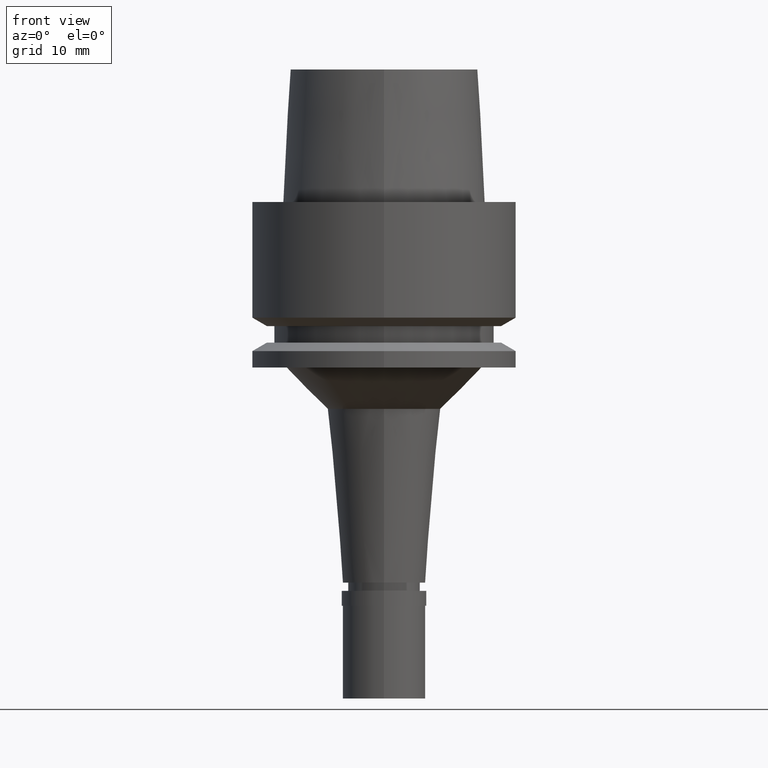
[diagram: clean part render]
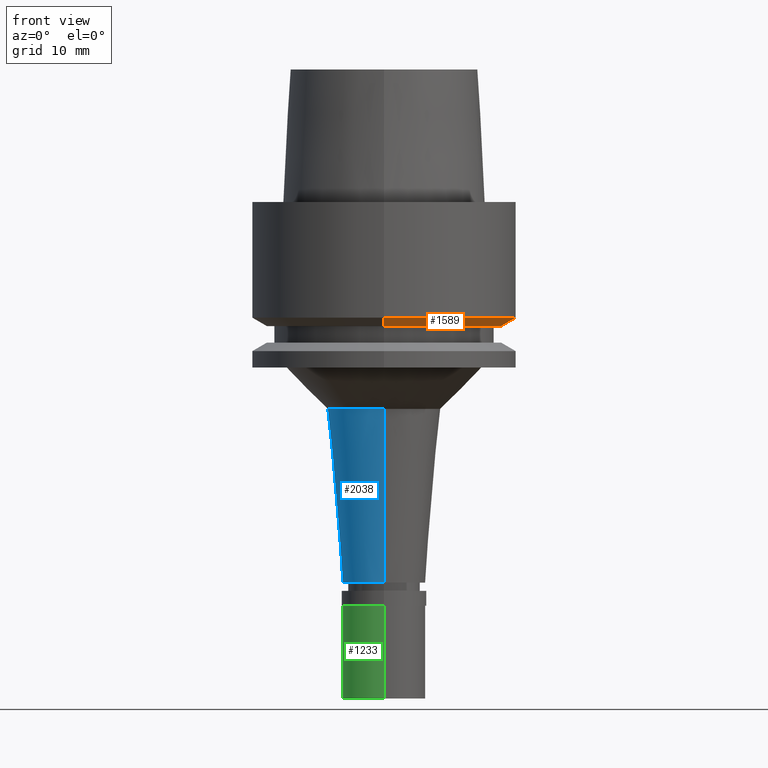
[diagram: same view with three faces highlighted in distinct colors, each labeled with its STEP entity id]
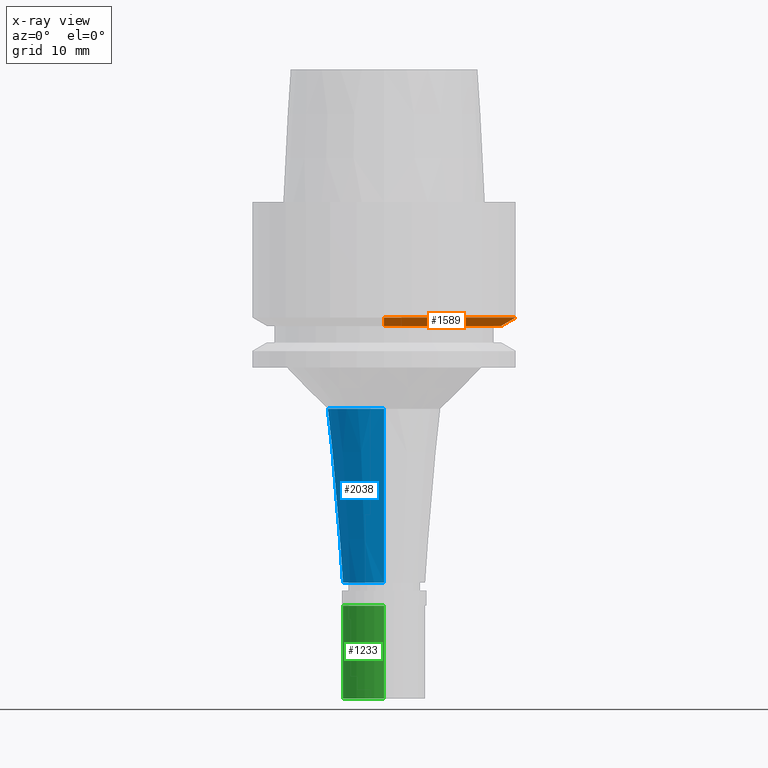
[diagram: x-ray of the same camera — body ghosted, the three highlighted faces saturated]
A machine part, front view with three faces highlighted in distinct colors.
The next image is the same camera in x-ray (body ghosted, the three faces saturated) — at least one of them is partly hidden behind the body in this view.
Their STEP definitions:

[orange] entity #1589 — the highlighted conical surface has half-angle 60 deg.
#23 = AXIS2_PLACEMENT_3D ( 'NONE', #2186, #1377, #78 ) ;
#27 = CIRCLE ( 'NONE', #1471, 16.00000000000000000 ) ;
#78 = DIRECTION ( 'NONE',  ( 0.0000000000000000000, 1.000000000000000000, 0.0000000000000000000 ) ) ;
#104 = FACE_OUTER_BOUND ( 'NONE', #1565, .T. ) ;
#149 = EDGE_CURVE ( 'NONE', #2652, #2272, #2488, .T. ) ;
#190 = CONICAL_SURFACE ( 'NONE', #23, 15.11602540378000015, 1.047197551196400456 ) ;
#322 = AXIS2_PLACEMENT_3D ( 'NONE', #1798, #2613, #1335 ) ;
#426 = CARTESIAN_POINT ( 'NONE',  ( 0.0000000000000000000, -16.00000000000000000, -13.97927405783999966 ) ) ;
#451 = CARTESIAN_POINT ( 'NONE',  ( 0.0000000000000000000, 14.23205080756999941, -15.00000000000000000 ) ) ;
#457 = VERTEX_POINT ( 'NONE', #451 ) ;
#508 = CARTESIAN_POINT ( 'NONE',  ( 0.0000000000000000000, 0.0000000000000000000, -13.97927405783999966 ) ) ;
#511 = ORIENTED_EDGE ( 'NONE', *, *, #2663, .T. ) ;
#561 = VECTOR ( 'NONE', #1454, 1000.000000000000000 ) ;
#862 = VECTOR ( 'NONE', #1867, 1000.000000000000000 ) ;
#972 = CARTESIAN_POINT ( 'NONE',  ( 0.0000000000000000000, -16.00000000000000000, -13.97927405783999966 ) ) ;
#1335 = DIRECTION ( 'NONE',  ( 0.0000000000000000000, -1.000000000000000000, 0.0000000000000000000 ) ) ;
#1349 = DIRECTION ( 'NONE',  ( 0.0000000000000000000, 0.0000000000000000000, 1.000000000000000000 ) ) ;
#1375 = ORIENTED_EDGE ( 'NONE', *, *, #149, .T. ) ;
#1377 = DIRECTION ( 'NONE',  ( 0.0000000000000000000, 0.0000000000000000000, 1.000000000000000000 ) ) ;
#1454 = DIRECTION ( 'NONE',  ( 0.0000000000000000000, 0.8660254037847886499, -0.4999999999993937627 ) ) ;
#1471 = AXIS2_PLACEMENT_3D ( 'NONE', #508, #1349, #1573 ) ;
#1565 = EDGE_LOOP ( 'NONE', ( #2553, #1375, #511, #2169 ) ) ;
#1573 = DIRECTION ( 'NONE',  ( 0.0000000000000000000, -1.000000000000000000, 0.0000000000000000000 ) ) ;
#1589 = ADVANCED_FACE ( 'NONE', ( #104 ), #190, .T. ) ;
#1672 = LINE ( 'NONE', #1831, #862 ) ;
#1798 = CARTESIAN_POINT ( 'NONE',  ( 0.0000000000000000000, 0.0000000000000000000, -15.00000000000000000 ) ) ;
#1831 = CARTESIAN_POINT ( 'NONE',  ( 0.0000000000000000000, 16.00000000000000000, -13.97927405783999966 ) ) ;
#1867 = DIRECTION ( 'NONE',  ( 0.0000000000000000000, -0.8660254037847886499, -0.4999999999993937627 ) ) ;
#1953 = CIRCLE ( 'NONE', #322, 14.23205080756999941 ) ;
#2093 = CARTESIAN_POINT ( 'NONE',  ( 0.0000000000000000000, -14.23205080756999941, -15.00000000000000000 ) ) ;
#2169 = ORIENTED_EDGE ( 'NONE', *, *, #2180, .F. ) ;
#2180 = EDGE_CURVE ( 'NONE', #2291, #457, #1672, .T. ) ;
#2186 = CARTESIAN_POINT ( 'NONE',  ( 0.0000000000000000000, 0.0000000000000000000, -14.48963702891999894 ) ) ;
#2272 = VERTEX_POINT ( 'NONE', #2093 ) ;
#2291 = VERTEX_POINT ( 'NONE', #2560 ) ;
#2488 = LINE ( 'NONE', #426, #561 ) ;
#2553 = ORIENTED_EDGE ( 'NONE', *, *, #2624, .F. ) ;
#2560 = CARTESIAN_POINT ( 'NONE',  ( 0.0000000000000000000, 16.00000000000000000, -13.97927405783999966 ) ) ;
#2613 = DIRECTION ( 'NONE',  ( 0.0000000000000000000, 0.0000000000000000000, 1.000000000000000000 ) ) ;
#2624 = EDGE_CURVE ( 'NONE', #2652, #2291, #27, .T. ) ;
#2652 = VERTEX_POINT ( 'NONE', #972 ) ;
#2663 = EDGE_CURVE ( 'NONE', #2272, #457, #1953, .T. ) ;

[blue] entity #2038 — the highlighted conical surface has half-angle 5 deg.
#10 = ORIENTED_EDGE ( 'NONE', *, *, #1971, .T. ) ;
#95 = CARTESIAN_POINT ( 'NONE',  ( 0.0000000000000000000, 0.0000000000000000000, -35.50000000000000000 ) ) ;
#126 = FACE_OUTER_BOUND ( 'NONE', #1603, .T. ) ;
#136 = CARTESIAN_POINT ( 'NONE',  ( 0.0000000000000000000, -6.837261934044000178, -25.00000000000000000 ) ) ;
#320 = CARTESIAN_POINT ( 'NONE',  ( 0.0000000000000000000, 6.837261934044000178, -25.00000000000000000 ) ) ;
#343 = EDGE_CURVE ( 'NONE', #1796, #1977, #652, .T. ) ;
#652 = CIRCLE ( 'NONE', #1046, 6.837261934044000178 ) ;
#698 = LINE ( 'NONE', #1159, #1996 ) ;
#815 = AXIS2_PLACEMENT_3D ( 'NONE', #1478, #2200, #1606 ) ;
#816 = ORIENTED_EDGE ( 'NONE', *, *, #2597, .F. ) ;
#925 = DIRECTION ( 'NONE',  ( 0.0000000000000000000, -1.000000000000000000, 0.0000000000000000000 ) ) ;
#940 = CARTESIAN_POINT ( 'NONE',  ( 0.0000000000000000000, -5.000000000000000000, -46.00000000000000000 ) ) ;
#953 = VERTEX_POINT ( 'NONE', #1690 ) ;
#984 = DIRECTION ( 'NONE',  ( 0.0000000000000000000, 0.08715574274765398866, -0.9961946980917458783 ) ) ;
#1046 = AXIS2_PLACEMENT_3D ( 'NONE', #1053, #2132, #925 ) ;
#1053 = CARTESIAN_POINT ( 'NONE',  ( 0.0000000000000000000, 0.0000000000000000000, -25.00000000000000000 ) ) ;
#1151 = DIRECTION ( 'NONE',  ( 0.0000000000000000000, 0.0000000000000000000, 1.000000000000000000 ) ) ;
#1159 = CARTESIAN_POINT ( 'NONE',  ( 0.0000000000000000000, -6.837261934044000178, -25.00000000000000000 ) ) ;
#1478 = CARTESIAN_POINT ( 'NONE',  ( 0.0000000000000000000, 0.0000000000000000000, -46.00000000000000000 ) ) ;
#1563 = ORIENTED_EDGE ( 'NONE', *, *, #343, .T. ) ;
#1568 = VERTEX_POINT ( 'NONE', #940 ) ;
#1598 = CONICAL_SURFACE ( 'NONE', #1994, 5.918630967021999645, 0.08726646259969973729 ) ;
#1603 = EDGE_LOOP ( 'NONE', ( #10, #816, #1563, #1814 ) ) ;
#1606 = DIRECTION ( 'NONE',  ( 0.0000000000000000000, 1.000000000000000000, 0.0000000000000000000 ) ) ;
#1690 = CARTESIAN_POINT ( 'NONE',  ( 0.0000000000000000000, 5.000000000000000000, -46.00000000000000000 ) ) ;
#1771 = CARTESIAN_POINT ( 'NONE',  ( 0.0000000000000000000, 6.837261934044000178, -25.00000000000000000 ) ) ;
#1796 = VERTEX_POINT ( 'NONE', #136 ) ;
#1814 = ORIENTED_EDGE ( 'NONE', *, *, #2151, .T. ) ;
#1971 = EDGE_CURVE ( 'NONE', #953, #1568, #2418, .T. ) ;
#1977 = VERTEX_POINT ( 'NONE', #1771 ) ;
#1994 = AXIS2_PLACEMENT_3D ( 'NONE', #95, #1151, #2431 ) ;
#1996 = VECTOR ( 'NONE', #984, 1000.000000000000000 ) ;
#2038 = ADVANCED_FACE ( 'NONE', ( #126 ), #1598, .T. ) ;
#2132 = DIRECTION ( 'NONE',  ( 0.0000000000000000000, 0.0000000000000000000, -1.000000000000000000 ) ) ;
#2151 = EDGE_CURVE ( 'NONE', #1977, #953, #2606, .T. ) ;
#2200 = DIRECTION ( 'NONE',  ( 0.0000000000000000000, 0.0000000000000000000, 1.000000000000000000 ) ) ;
#2294 = VECTOR ( 'NONE', #2617, 1000.000000000000000 ) ;
#2418 = CIRCLE ( 'NONE', #815, 5.000000000000000000 ) ;
#2431 = DIRECTION ( 'NONE',  ( 0.0000000000000000000, 1.000000000000000000, 0.0000000000000000000 ) ) ;
#2597 = EDGE_CURVE ( 'NONE', #1796, #1568, #698, .T. ) ;
#2606 = LINE ( 'NONE', #320, #2294 ) ;
#2617 = DIRECTION ( 'NONE',  ( 0.0000000000000000000, -0.08715574274765398866, -0.9961946980917458783 ) ) ;

[green] entity #1233 — the highlighted cylindrical surface (partial cylindrical patch) has radius 5 mm, axis along (0, 0, 1).
#184 = DIRECTION ( 'NONE',  ( 0.0000000000000000000, 0.0000000000000000000, 1.000000000000000000 ) ) ;
#187 = AXIS2_PLACEMENT_3D ( 'NONE', #1681, #1670, #408 ) ;
#211 = VERTEX_POINT ( 'NONE', #558 ) ;
#289 = EDGE_CURVE ( 'NONE', #1326, #211, #1815, .T. ) ;
#408 = DIRECTION ( 'NONE',  ( 0.0000000000000000000, 1.000000000000000000, 0.0000000000000000000 ) ) ;
#558 = CARTESIAN_POINT ( 'NONE',  ( 0.0000000000000000000, -5.000000000000000000, -13.00000000000000000 ) ) ;
#596 = CYLINDRICAL_SURFACE ( 'NONE', #1591, 5.000000000000000000 ) ;
#736 = EDGE_CURVE ( 'NONE', #1535, #1995, #1761, .T. ) ;
#772 = DIRECTION ( 'NONE',  ( 0.0000000000000000000, 0.0000000000000000000, -1.000000000000000000 ) ) ;
#835 = VECTOR ( 'NONE', #772, 1000.000000000000000 ) ;
#919 = DIRECTION ( 'NONE',  ( 0.0000000000000000000, 1.000000000000000000, 0.0000000000000000000 ) ) ;
#948 = CARTESIAN_POINT ( 'NONE',  ( 0.0000000000000000000, 5.000000000000000000, -1.800000000000000044 ) ) ;
#1185 = EDGE_CURVE ( 'NONE', #1995, #211, #1371, .T. ) ;
#1223 = VECTOR ( 'NONE', #2381, 1000.000000000000000 ) ;
#1228 = CARTESIAN_POINT ( 'NONE',  ( 0.0000000000000000000, 0.0000000000000000000, -13.65000000000000036 ) ) ;
#1233 = ADVANCED_FACE ( 'NONE', ( #1482 ), #596, .T. ) ;
#1326 = VERTEX_POINT ( 'NONE', #1696 ) ;
#1371 = CIRCLE ( 'NONE', #187, 5.000000000000000000 ) ;
#1374 = CIRCLE ( 'NONE', #1642, 5.000000000000000000 ) ;
#1438 = EDGE_LOOP ( 'NONE', ( #1496, #2595, #2416, #1959 ) ) ;
#1482 = FACE_OUTER_BOUND ( 'NONE', #1438, .T. ) ;
#1496 = ORIENTED_EDGE ( 'NONE', *, *, #1185, .T. ) ;
#1535 = VERTEX_POINT ( 'NONE', #2175 ) ;
#1591 = AXIS2_PLACEMENT_3D ( 'NONE', #1228, #184, #919 ) ;
#1642 = AXIS2_PLACEMENT_3D ( 'NONE', #2632, #1965, #1816 ) ;
#1670 = DIRECTION ( 'NONE',  ( 0.0000000000000000000, 0.0000000000000000000, 1.000000000000000000 ) ) ;
#1681 = CARTESIAN_POINT ( 'NONE',  ( 0.0000000000000000000, 0.0000000000000000000, -13.00000000000000000 ) ) ;
#1696 = CARTESIAN_POINT ( 'NONE',  ( 0.0000000000000000000, -5.000000000000000000, -1.800000000000000044 ) ) ;
#1761 = LINE ( 'NONE', #948, #1223 ) ;
#1815 = LINE ( 'NONE', #2005, #835 ) ;
#1816 = DIRECTION ( 'NONE',  ( 0.0000000000000000000, -1.000000000000000000, 0.0000000000000000000 ) ) ;
#1959 = ORIENTED_EDGE ( 'NONE', *, *, #736, .T. ) ;
#1965 = DIRECTION ( 'NONE',  ( 0.0000000000000000000, 0.0000000000000000000, -1.000000000000000000 ) ) ;
#1995 = VERTEX_POINT ( 'NONE', #2590 ) ;
#2005 = CARTESIAN_POINT ( 'NONE',  ( 0.0000000000000000000, -5.000000000000000000, -1.800000000000000044 ) ) ;
#2073 = EDGE_CURVE ( 'NONE', #1326, #1535, #1374, .T. ) ;
#2175 = CARTESIAN_POINT ( 'NONE',  ( 0.0000000000000000000, 5.000000000000000000, -1.800000000000000044 ) ) ;
#2381 = DIRECTION ( 'NONE',  ( 0.0000000000000000000, 0.0000000000000000000, -1.000000000000000000 ) ) ;
#2416 = ORIENTED_EDGE ( 'NONE', *, *, #2073, .T. ) ;
#2590 = CARTESIAN_POINT ( 'NONE',  ( 0.0000000000000000000, 5.000000000000000000, -13.00000000000000000 ) ) ;
#2595 = ORIENTED_EDGE ( 'NONE', *, *, #289, .F. ) ;
#2632 = CARTESIAN_POINT ( 'NONE',  ( 0.0000000000000000000, 0.0000000000000000000, -1.800000000000000044 ) ) ;